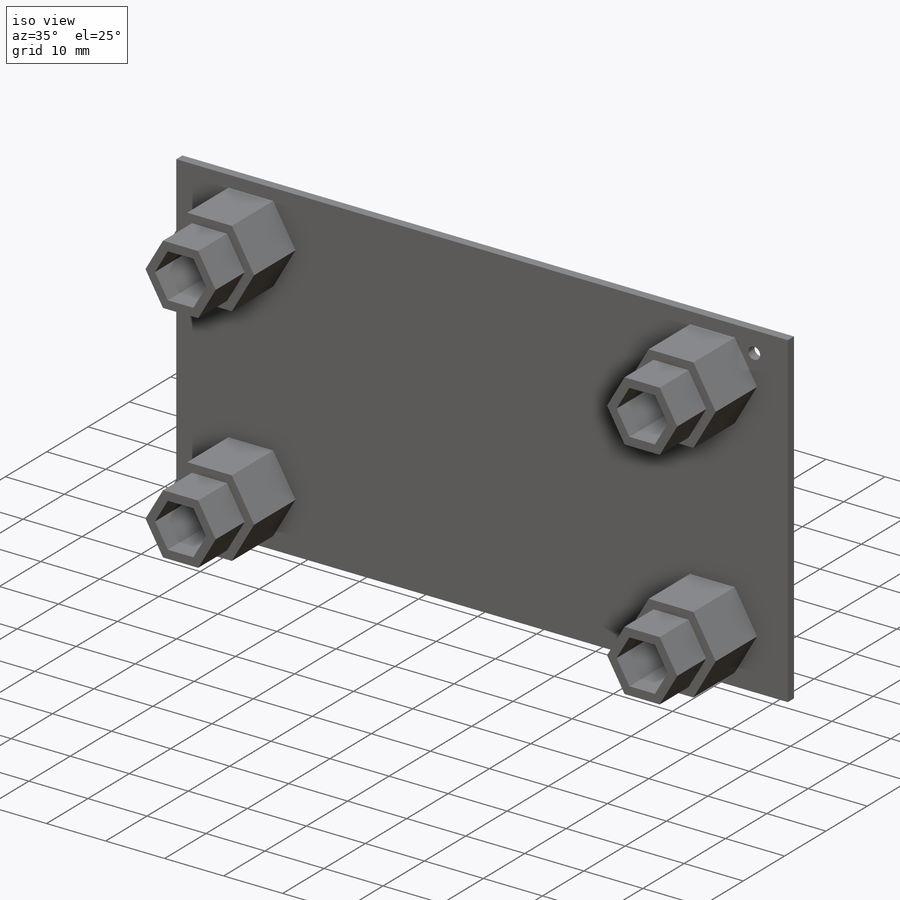
[diagram: iso view]
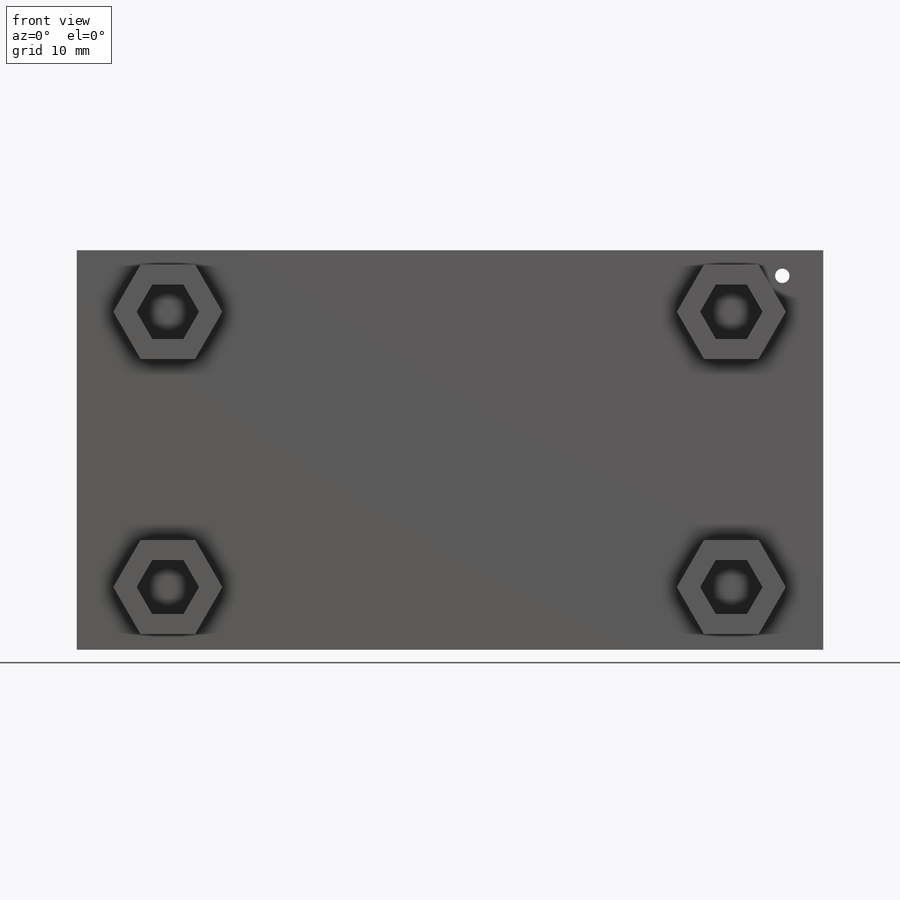
[diagram: front view]
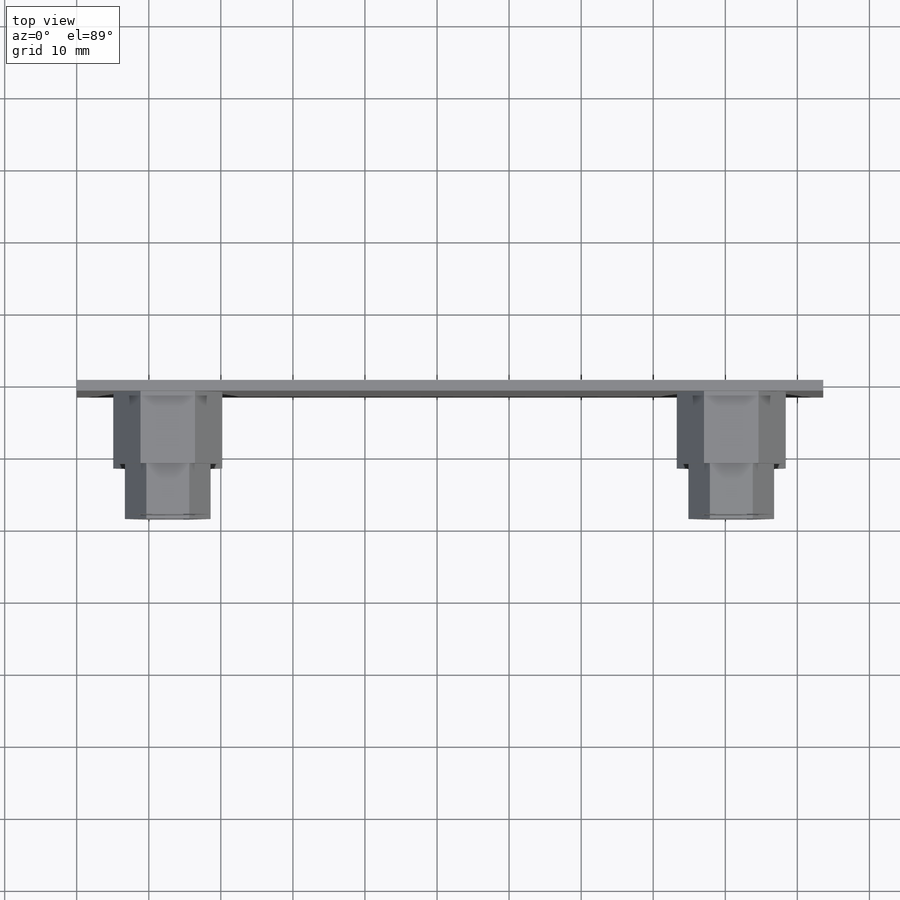
[diagram: top view]
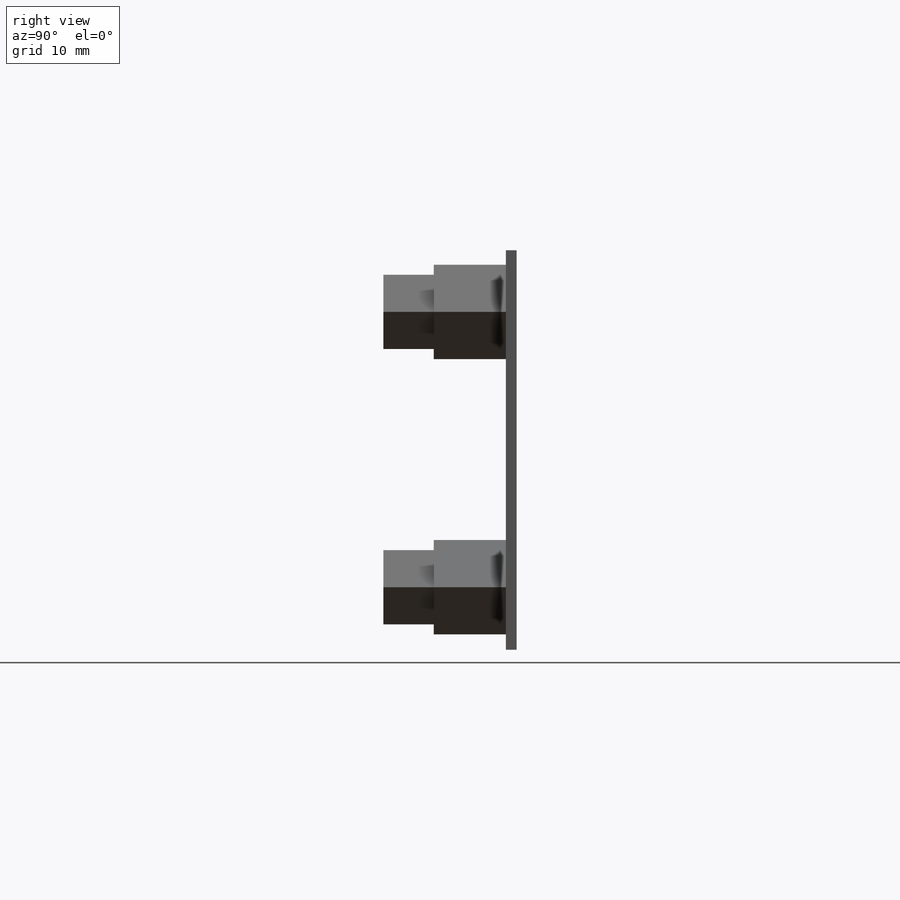
[diagram: right view]
SOLIDWORKS PART (.sldprt)
format: sldprt  version: not decoded by parser v0  size: 402,432 bytes
history: native  units: mm
features: sketch x5, extrude x3, cut_extrude x2, material x1 (+11 scaffold rows collapsed)
feature tree (22):
  scaffold x11  (default folders/planes/origin — collapsed)
  material  "Material <not specified>"
  sketch  "Sketch1"  dims[D1=103.6mm D2=55.42mm]
  extrude  "Boss-Extrude1"  Depth=1.5mm
  sketch  "Sketch2"  dims[c1.D3=2.0mm c1.D1=3.54mm c1.D2=5.96mm c1.D4=75.14mm c1.D5=7.49mm c2.D2=5.69mm c2.D5=7.49mm]
  cut_extrude  "Cut-Extrude1"  Depth=1.5mm
  sketch  "Sketch3"  dims[D1=3.4mm D2=10.3mm D3=6.69mm D4=66.3mm D5=38.2mm]
  extrude  "Boss-Extrude2"  Depth=17mm
  sketch  "Sketch4"  dims[D1=1.4mm]
  extrude  "Boss-Extrude4"  Depth=10mm
  sketch  "Sketch5"  dims[D1=1.4mm]
  cut_extrude  "Cut-Extrude2"  Depth=15mm
decode coverage: 10 of 10 modeling features carry decoded parameters
note: suppression state not decoded; provenance and decode notes live in map.json
